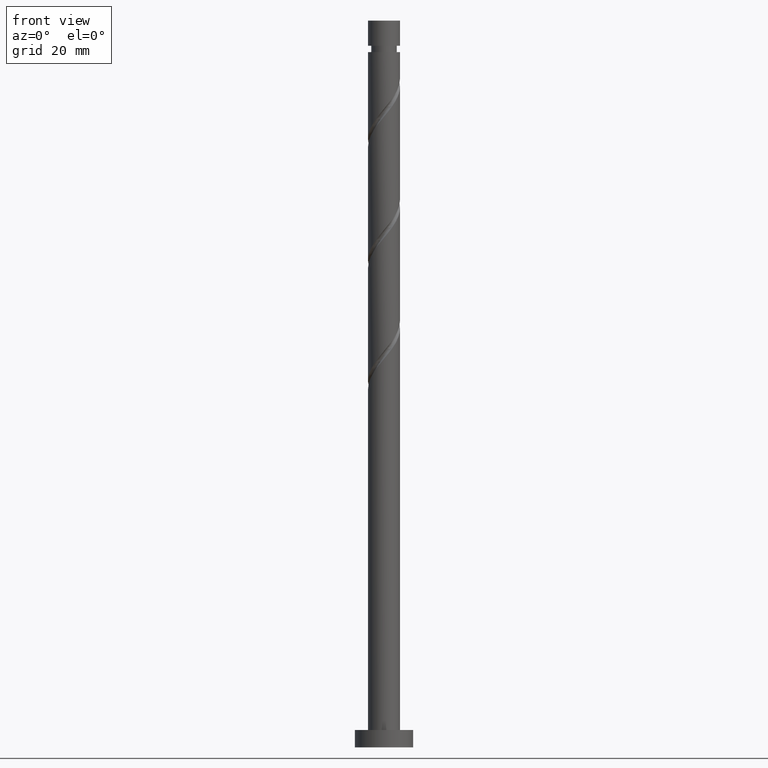
[diagram: clean part render]
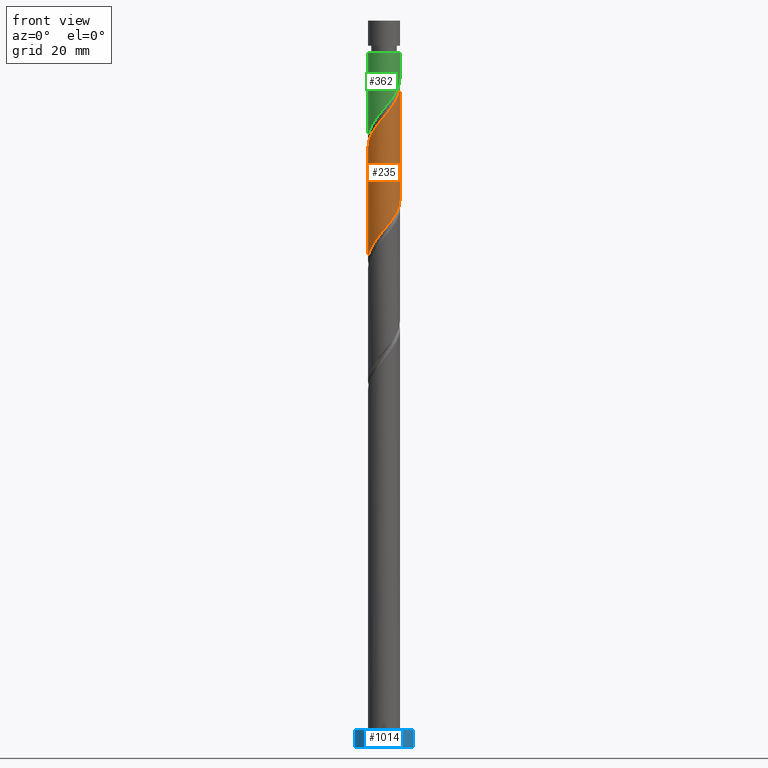
[diagram: same view with three faces highlighted in distinct colors, each labeled with its STEP entity id]
A machine part, front view with three faces highlighted in distinct colors.
Their STEP definitions:

[orange] entity #235 — the highlighted cylindrical surface (edge-blend (fillet) strip) has radius 2.75 mm, axis along (-0, -0, -1).
#34 = ORIENTED_EDGE ( 'NONE', *, *, #1006, .F. ) ;
#36 = CARTESIAN_POINT ( 'NONE',  ( 1.353259906971121307, -2.393989896424906672, 110.1930543868188153 ) ) ;
#95 = CARTESIAN_POINT ( 'NONE',  ( -0.9740891570832675983, -2.608325209404156908, 87.79722105348547245 ) ) ;
#98 = FACE_OUTER_BOUND ( 'NONE', #238, .T. ) ;
#136 = CARTESIAN_POINT ( 'NONE',  ( -2.695000000000003393, -0.5472430904086422743, 103.9430543868188010 ) ) ;
#168 = CARTESIAN_POINT ( 'NONE',  ( -2.608325209404161349, -0.9740891570832682644, 104.4638877201521439 ) ) ;
#193 = CARTESIAN_POINT ( 'NONE',  ( -2.750000000000000000, 0.000000000000000000, 125.0000000000000000 ) ) ;
#225 = ORIENTED_EDGE ( 'NONE', *, *, #1205, .F. ) ;
#235 = ADVANCED_FACE ( 'NONE', ( #98 ), #863, .T. ) ;
#238 = EDGE_LOOP ( 'NONE', ( #678, #225, #1573, #34 ) ) ;
#248 = CARTESIAN_POINT ( 'NONE',  ( -0.1203970237340173666, -2.781674790595842772, 88.83888772015215807 ) ) ;
#257 = CARTESIAN_POINT ( 'NONE',  ( -1.141352294733360084, -2.501962217801642741, 107.0680543868188295 ) ) ;
#258 = AXIS2_PLACEMENT_3D ( 'NONE', #586, #351, #1074 ) ;
#278 = CARTESIAN_POINT ( 'NONE',  ( -2.393989896424906227, -1.353259906971121307, 104.9847210534854725 ) ) ;
#347 = CARTESIAN_POINT ( 'NONE',  ( 2.750000000000000888, 2.968634351074752664E-15, 94.19119016162238722 ) ) ;
#351 = DIRECTION ( 'NONE',  ( -0.000000000000000000, -0.000000000000000000, -1.000000000000000000 ) ) ;
#355 = CARTESIAN_POINT ( 'NONE',  ( 1.141352294733357198, -2.501962217801639632, 90.40138772015214386 ) ) ;
#366 = CARTESIAN_POINT ( 'NONE',  ( 1.858639381879326535, -2.026810215123072467, 91.44305438681882947 ) ) ;
#386 = CARTESIAN_POINT ( 'NONE',  ( 2.750000000000004885, -0.1566777779776773460, 113.5054075228079853 ) ) ;
#408 = CARTESIAN_POINT ( 'NONE',  ( 2.026810215123074688, -1.858639381879330088, 111.2347210534854725 ) ) ;
#485 = CARTESIAN_POINT ( 'NONE',  ( -2.026810215123072467, -1.858639381879326535, 86.23472105348547245 ) ) ;
#509 = CARTESIAN_POINT ( 'NONE',  ( -2.750000000000003997, -0.2763853991962820222, 103.6125565207563710 ) ) ;
#514 = CARTESIAN_POINT ( 'NONE',  ( 2.750000000000003109, 1.859144745117509121E-15, 113.6949186120152149 ) ) ;
#583 = CARTESIAN_POINT ( 'NONE',  ( -1.732430656858973350, -2.179654583445647109, 86.75555438681884368 ) ) ;
#586 = CARTESIAN_POINT ( 'NONE',  ( 0.000000000000000000, 0.000000000000000000, 125.0000000000000000 ) ) ;
#613 = VECTOR ( 'NONE', #1197, 1000.000000000000000 ) ;
#638 = EDGE_CURVE ( 'NONE', #1438, #1265, #1529, .T. ) ;
#644 = CARTESIAN_POINT ( 'NONE',  ( -1.537624180313008848, -2.321189773387173805, 106.5472210534854582 ) ) ;
#678 = ORIENTED_EDGE ( 'NONE', *, *, #744, .F. ) ;
#705 = CARTESIAN_POINT ( 'NONE',  ( 2.750000000000000888, 2.968634351074752664E-15, 94.19119016162238722 ) ) ;
#744 = EDGE_CURVE ( 'NONE', #1105, #1089, #1190, .T. ) ;
#748 = CARTESIAN_POINT ( 'NONE',  ( -2.750000000000003109, 1.589268895019806216E-15, 103.2782519453485293 ) ) ;
#761 = CARTESIAN_POINT ( 'NONE',  ( -2.750000000000000888, -3.283489509522074659E-15, 83.77452349495574424 ) ) ;
#767 = CARTESIAN_POINT ( 'NONE',  ( -0.7450804091537110985, -2.682734662216110344, 107.5888877201521581 ) ) ;
#835 = CARTESIAN_POINT ( 'NONE',  ( 0.7450804091537088780, -2.682734662216107679, 89.88055438681881526 ) ) ;
#863 = CYLINDRICAL_SURFACE ( 'NONE', #258, 2.750000000000000000 ) ;
#865 = CARTESIAN_POINT ( 'NONE',  ( -1.858639381879330088, -2.026810215123074688, 106.0263877201521154 ) ) ;
#891 = CARTESIAN_POINT ( 'NONE',  ( 2.501962217801642741, -1.141352294733360084, 112.2763877201521581 ) ) ;
#947 = VECTOR ( 'NONE', #1182, 1000.000000000000000 ) ;
#978 = CARTESIAN_POINT ( 'NONE',  ( 2.750000000000003109, 1.859144745117509121E-15, 113.6949186120152149 ) ) ;
#984 = CARTESIAN_POINT ( 'NONE',  ( 1.537624180313005740, -2.321189773387172472, 90.92222105348550087 ) ) ;
#990 = CARTESIAN_POINT ( 'NONE',  ( 2.682734662216110788, -0.7450804091537112095, 112.7972210534854725 ) ) ;
#997 = CARTESIAN_POINT ( 'NONE',  ( 2.321189773387174693, -1.537624180313009070, 111.7555543868188010 ) ) ;
#1006 = EDGE_CURVE ( 'NONE', #1089, #1265, #1249, .T. ) ;
#1008 = CARTESIAN_POINT ( 'NONE',  ( -2.179654583445650218, -1.732430656858974904, 105.5055543868188010 ) ) ;
#1016 = CARTESIAN_POINT ( 'NONE',  ( 0.5472430904086422743, -2.695000000000003393, 109.1513877201521296 ) ) ;
#1022 = CARTESIAN_POINT ( 'NONE',  ( -2.750000000000003109, 1.589268895019806216E-15, 103.2782519453485293 ) ) ;
#1069 = CARTESIAN_POINT ( 'NONE',  ( -2.321189773387171584, -1.537624180313005740, 85.71388772015214386 ) ) ;
#1074 = DIRECTION ( 'NONE',  ( -1.000000000000000000, 0.000000000000000000, 0.000000000000000000 ) ) ;
#1089 = VERTEX_POINT ( 'NONE', #347 ) ;
#1104 = CARTESIAN_POINT ( 'NONE',  ( 2.393989896424902675, -1.353259906971120641, 92.48472105348548666 ) ) ;
#1105 = VERTEX_POINT ( 'NONE', #978 ) ;
#1113 = CARTESIAN_POINT ( 'NONE',  ( 1.732430656858974682, -2.179654583445650218, 110.7138877201521439 ) ) ;
#1132 = CARTESIAN_POINT ( 'NONE',  ( 0.9740891570832681534, -2.608325209404161793, 109.6722210534854867 ) ) ;
#1182 = DIRECTION ( 'NONE',  ( -0.000000000000000000, -0.000000000000000000, -1.000000000000000000 ) ) ;
#1189 = CARTESIAN_POINT ( 'NONE',  ( 0.3123416927098458529, -2.732204726405975226, 89.35972105348547245 ) ) ;
#1190 = LINE ( 'NONE', #1214, #613 ) ;
#1196 = CARTESIAN_POINT ( 'NONE',  ( -2.682734662216107679, -0.7450804091537093221, 84.67222105348550087 ) ) ;
#1197 = DIRECTION ( 'NONE',  ( -0.000000000000000000, -0.000000000000000000, -1.000000000000000000 ) ) ;
#1205 = EDGE_CURVE ( 'NONE', #1438, #1105, #1515, .T. ) ;
#1214 = CARTESIAN_POINT ( 'NONE',  ( 2.750000000000000000, 3.367778697655220519E-16, 125.0000000000000000 ) ) ;
#1219 = CARTESIAN_POINT ( 'NONE',  ( -2.501962217801639632, -1.141352294733357198, 85.19305438681881526 ) ) ;
#1226 = CARTESIAN_POINT ( 'NONE',  ( -0.3123416927098473517, -2.732204726405979223, 108.1097210534854867 ) ) ;
#1244 = CARTESIAN_POINT ( 'NONE',  ( 0.1203970237340162008, -2.781674790595845437, 108.6305543868188010 ) ) ;
#1249 =( BOUNDED_CURVE ( )  B_SPLINE_CURVE ( 2, ( #705, #1329, #1446, #1338, #1104, #1452, #366, #984, #355, #835, #1189, #248, #1462, #95, #1563, #583, #485, #1069, #1219, #1196, #1320, #1313, #1554 ),
 .UNSPECIFIED., .F., .T. ) 
 B_SPLINE_CURVE_WITH_KNOTS ( ( 3, 2, 2, 2, 2, 2, 2, 2, 2, 2, 2, 3 ),
 ( 0.5545322023138551382, 0.5625000000000000000, 0.5749999999999999556, 0.5875000000000000222, 0.5999999999999999778, 0.6125000000000000444, 0.6250000000000000000, 0.6374999999999999556, 0.6500000000000000222, 0.6624999999999999778, 0.6750000000000000444, 0.6795322023138551382 ),
 .UNSPECIFIED. ) 
 CURVE ( )  GEOMETRIC_REPRESENTATION_ITEM ( )  RATIONAL_B_SPLINE_CURVE ( ( 0.9039174447099340703, 0.9019565955404633684, 0.9090909090909118362, 0.8978984914501279002, 0.9090909090909118362, 0.8978984914501279002, 0.9090909090909118362, 0.8978984914501279002, 0.9090909090909118362, 0.8978984914501279002, 0.9090909090909118362, 0.8978984914501279002, 0.9090909090909118362, 0.8978984914501279002, 0.9090909090909118362, 0.8978984914501279002, 0.9090909090909118362, 0.8978984914501279002, 0.9090909090909118362, 0.8978984914501279002, 0.9090909090909118362, 0.9050328050005762570, 0.9039174447099340703 ) ) 
 REPRESENTATION_ITEM ( '' )  );
#1265 = VERTEX_POINT ( 'NONE', #761 ) ;
#1313 = CARTESIAN_POINT ( 'NONE',  ( -2.750000000000000444, -0.1566777779776913071, 83.96403458416301646 ) ) ;
#1320 = CARTESIAN_POINT ( 'NONE',  ( -2.732204726405975670, -0.3123416927098459084, 84.15138772015214386 ) ) ;
#1329 = CARTESIAN_POINT ( 'NONE',  ( 2.750000000000000888, -0.2763853991962827439, 93.85688558621455968 ) ) ;
#1338 = CARTESIAN_POINT ( 'NONE',  ( 2.608325209404156908, -0.9740891570832678203, 93.00555438681884368 ) ) ;
#1438 = VERTEX_POINT ( 'NONE', #1022 ) ;
#1446 = CARTESIAN_POINT ( 'NONE',  ( 2.694999999999999840, -0.5472430904086428294, 93.52638772015211543 ) ) ;
#1452 = CARTESIAN_POINT ( 'NONE',  ( 2.179654583445646665, -1.732430656858973350, 91.96388772015217228 ) ) ;
#1462 = CARTESIAN_POINT ( 'NONE',  ( -0.5472430904086426073, -2.694999999999999840, 88.31805438681880105 ) ) ;
#1472 = CARTESIAN_POINT ( 'NONE',  ( 2.732204726405979223, -0.3123416927098474072, 113.3180543868188295 ) ) ;
#1515 =( BOUNDED_CURVE ( )  B_SPLINE_CURVE ( 2, ( #748, #509, #136, #168, #278, #1008, #865, #644, #257, #767, #1226, #1244, #1016, #1132, #36, #1113, #408, #997, #891, #990, #1472, #386, #514 ),
 .UNSPECIFIED., .F., .T. ) 
 B_SPLINE_CURVE_WITH_KNOTS ( ( 3, 2, 2, 2, 2, 2, 2, 2, 2, 2, 2, 3 ),
 ( 0.5545322023138551382, 0.5625000000000000000, 0.5749999999999999556, 0.5875000000000000222, 0.5999999999999999778, 0.6125000000000000444, 0.6250000000000000000, 0.6374999999999999556, 0.6500000000000000222, 0.6624999999999999778, 0.6750000000000000444, 0.6795322023138555823 ),
 .UNSPECIFIED. ) 
 CURVE ( )  GEOMETRIC_REPRESENTATION_ITEM ( )  RATIONAL_B_SPLINE_CURVE ( ( 0.9039174447099400656, 0.9019565955404691415, 0.9090909090909177204, 0.8978984914501337844, 0.9090909090909177204, 0.8978984914501337844, 0.9090909090909177204, 0.8978984914501337844, 0.9090909090909177204, 0.8978984914501337844, 0.9090909090909177204, 0.8978984914501337844, 0.9090909090909177204, 0.8978984914501337844, 0.9090909090909177204, 0.8978984914501337844, 0.9090909090909177204, 0.8978984914501337844, 0.9090909090909177204, 0.8978984914501337844, 0.9090909090909177204, 0.9050328050005818081, 0.9039174447099397325 ) ) 
 REPRESENTATION_ITEM ( '' )  );
#1529 = LINE ( 'NONE', #193, #947 ) ;
#1554 = CARTESIAN_POINT ( 'NONE',  ( -2.750000000000000888, -3.283489509522074659E-15, 83.77452349495574424 ) ) ;
#1563 = CARTESIAN_POINT ( 'NONE',  ( -1.353259906971120419, -2.393989896424902675, 87.27638772015214386 ) ) ;
#1573 = ORIENTED_EDGE ( 'NONE', *, *, #638, .T. ) ;

[blue] entity #1014 — the highlighted cylindrical surface (edge-blend (fillet) strip) has radius 5 mm, axis along (-0, -0, -1).
#81 = CARTESIAN_POINT ( 'NONE',  ( 5.000000000000000000, 6.123233995736766282E-16, 3.000000000000000000 ) ) ;
#91 = DIRECTION ( 'NONE',  ( 1.000000000000000000, 0.000000000000000000, 0.000000000000000000 ) ) ;
#99 = EDGE_CURVE ( 'NONE', #986, #913, #1369, .T. ) ;
#116 = EDGE_CURVE ( 'NONE', #1381, #671, #1551, .T. ) ;
#123 = ORIENTED_EDGE ( 'NONE', *, *, #99, .T. ) ;
#226 = ORIENTED_EDGE ( 'NONE', *, *, #116, .F. ) ;
#308 = VECTOR ( 'NONE', #475, 1000.000000000000000 ) ;
#323 = DIRECTION ( 'NONE',  ( 1.000000000000000000, 0.000000000000000000, 0.000000000000000000 ) ) ;
#330 = DIRECTION ( 'NONE',  ( 0.000000000000000000, 0.000000000000000000, 1.000000000000000000 ) ) ;
#335 = FACE_OUTER_BOUND ( 'NONE', #588, .T. ) ;
#377 = LINE ( 'NONE', #1341, #1241 ) ;
#388 = EDGE_CURVE ( 'NONE', #1381, #986, #377, .T. ) ;
#470 = DIRECTION ( 'NONE',  ( -0.000000000000000000, -0.000000000000000000, -1.000000000000000000 ) ) ;
#475 = DIRECTION ( 'NONE',  ( -0.000000000000000000, -0.000000000000000000, -1.000000000000000000 ) ) ;
#547 = CARTESIAN_POINT ( 'NONE',  ( -5.000000000000000000, 0.000000000000000000, 0.000000000000000000 ) ) ;
#550 = ORIENTED_EDGE ( 'NONE', *, *, #388, .T. ) ;
#588 = EDGE_LOOP ( 'NONE', ( #1522, #226, #550, #123 ) ) ;
#606 = LINE ( 'NONE', #1194, #308 ) ;
#671 = VERTEX_POINT ( 'NONE', #81 ) ;
#816 = CARTESIAN_POINT ( 'NONE',  ( 0.000000000000000000, 0.000000000000000000, 3.000000000000000000 ) ) ;
#831 = DIRECTION ( 'NONE',  ( 0.000000000000000000, 0.000000000000000000, 1.000000000000000000 ) ) ;
#852 = DIRECTION ( 'NONE',  ( -1.000000000000000000, 0.000000000000000000, 0.000000000000000000 ) ) ;
#913 = VERTEX_POINT ( 'NONE', #1294 ) ;
#935 = CARTESIAN_POINT ( 'NONE',  ( -5.000000000000000000, 0.000000000000000000, 3.000000000000000000 ) ) ;
#986 = VERTEX_POINT ( 'NONE', #547 ) ;
#1014 = ADVANCED_FACE ( 'NONE', ( #335 ), #1088, .T. ) ;
#1070 = AXIS2_PLACEMENT_3D ( 'NONE', #816, #330, #91 ) ;
#1088 = CYLINDRICAL_SURFACE ( 'NONE', #1401, 5.000000000000000000 ) ;
#1143 = AXIS2_PLACEMENT_3D ( 'NONE', #1184, #831, #323 ) ;
#1184 = CARTESIAN_POINT ( 'NONE',  ( 0.000000000000000000, 0.000000000000000000, 0.000000000000000000 ) ) ;
#1194 = CARTESIAN_POINT ( 'NONE',  ( 5.000000000000000000, 6.123233995736766282E-16, 3.000000000000000000 ) ) ;
#1223 = DIRECTION ( 'NONE',  ( -0.000000000000000000, -0.000000000000000000, -1.000000000000000000 ) ) ;
#1241 = VECTOR ( 'NONE', #1223, 1000.000000000000000 ) ;
#1294 = CARTESIAN_POINT ( 'NONE',  ( 5.000000000000000000, 6.123233995736766282E-16, 0.000000000000000000 ) ) ;
#1341 = CARTESIAN_POINT ( 'NONE',  ( -5.000000000000000000, 0.000000000000000000, 3.000000000000000000 ) ) ;
#1369 = CIRCLE ( 'NONE', #1143, 5.000000000000000000 ) ;
#1381 = VERTEX_POINT ( 'NONE', #935 ) ;
#1401 = AXIS2_PLACEMENT_3D ( 'NONE', #1569, #470, #852 ) ;
#1522 = ORIENTED_EDGE ( 'NONE', *, *, #1555, .F. ) ;
#1551 = CIRCLE ( 'NONE', #1070, 5.000000000000000000 ) ;
#1555 = EDGE_CURVE ( 'NONE', #671, #913, #606, .T. ) ;
#1569 = CARTESIAN_POINT ( 'NONE',  ( 0.000000000000000000, 0.000000000000000000, 3.000000000000000000 ) ) ;

[green] entity #362 — the highlighted cylindrical surface (edge-blend (fillet) strip) has radius 2.75 mm, axis along (-0, -0, -1).
#20 = CARTESIAN_POINT ( 'NONE',  ( 0.3123416927098458529, -2.732204726405975226, 110.1930543868188010 ) ) ;
#31 = DIRECTION ( 'NONE',  ( -0.000000000000000000, -0.000000000000000000, -1.000000000000000000 ) ) ;
#43 = CARTESIAN_POINT ( 'NONE',  ( -1.732430656858973350, -2.179654583445647109, 107.5888877201521723 ) ) ;
#106 = DIRECTION ( 'NONE',  ( -1.000000000000000000, 0.000000000000000000, 0.000000000000000000 ) ) ;
#113 = ORIENTED_EDGE ( 'NONE', *, *, #1110, .F. ) ;
#118 = DIRECTION ( 'NONE',  ( -1.000000000000000000, 0.000000000000000000, 0.000000000000000000 ) ) ;
#148 = VERTEX_POINT ( 'NONE', #708 ) ;
#161 = CARTESIAN_POINT ( 'NONE',  ( 2.179654583445646665, -1.732430656858973350, 112.7972210534854867 ) ) ;
#232 = CARTESIAN_POINT ( 'NONE',  ( 2.694999999999999840, -0.5472430904086428294, 114.3597210534854867 ) ) ;
#236 = DIRECTION ( 'NONE',  ( -0.000000000000000000, -0.000000000000000000, -1.000000000000000000 ) ) ;
#348 = ORIENTED_EDGE ( 'NONE', *, *, #718, .T. ) ;
#358 = CARTESIAN_POINT ( 'NONE',  ( 0.000000000000000000, 0.000000000000000000, 125.0000000000000000 ) ) ;
#362 = ADVANCED_FACE ( 'NONE', ( #480 ), #1449, .T. ) ;
#364 = VECTOR ( 'NONE', #31, 1000.000000000000000 ) ;
#380 = CARTESIAN_POINT ( 'NONE',  ( -2.750000000000000888, -0.1566777779776882262, 104.7973679174963451 ) ) ;
#393 = EDGE_CURVE ( 'NONE', #1453, #554, #1499, .T. ) ;
#401 = CARTESIAN_POINT ( 'NONE',  ( -2.682734662216107679, -0.7450804091537093221, 105.5055543868188153 ) ) ;
#428 = ORIENTED_EDGE ( 'NONE', *, *, #657, .T. ) ;
#429 = CARTESIAN_POINT ( 'NONE',  ( -2.750000000000000000, 0.000000000000000000, 125.0000000000000000 ) ) ;
#434 = CARTESIAN_POINT ( 'NONE',  ( 2.749999999999998224, 3.367778697655219532E-16, 119.5680543868188010 ) ) ;
#480 = FACE_OUTER_BOUND ( 'NONE', #904, .T. ) ;
#522 = CARTESIAN_POINT ( 'NONE',  ( -0.5472430904086426073, -2.694999999999999840, 109.1513877201521723 ) ) ;
#530 = CARTESIAN_POINT ( 'NONE',  ( 1.537624180313005740, -2.321189773387172472, 111.7555543868188437 ) ) ;
#554 = VERTEX_POINT ( 'NONE', #1261 ) ;
#593 = CARTESIAN_POINT ( 'NONE',  ( 2.750000000000000444, 5.397517001954094587E-16, 115.0245234949557300 ) ) ;
#597 =( BOUNDED_CURVE ( )  B_SPLINE_CURVE ( 2, ( #593, #1078, #232, #723, #1204, #161, #872, #530, #1480, #621, #20, #626, #522, #1373, #652, #43, #776, #1488, #1251, #401, #1118, #380, #884 ),
 .UNSPECIFIED., .F., .T. ) 
 B_SPLINE_CURVE_WITH_KNOTS ( ( 3, 2, 2, 2, 2, 2, 2, 2, 2, 2, 2, 3 ),
 ( 0.3045322023138550827, 0.3125000000000000000, 0.3250000000000000111, 0.3375000000000000222, 0.3499999999999999778, 0.3624999999999999889, 0.3750000000000000000, 0.3875000000000000111, 0.4000000000000000222, 0.4124999999999999778, 0.4249999999999999889, 0.4295322023138551937 ),
 .UNSPECIFIED. ) 
 CURVE ( )  GEOMETRIC_REPRESENTATION_ITEM ( )  RATIONAL_B_SPLINE_CURVE ( ( 0.9039174447099341814, 0.9019565955404633684, 0.9090909090909118362, 0.8978984914501279002, 0.9090909090909118362, 0.8978984914501279002, 0.9090909090909118362, 0.8978984914501279002, 0.9090909090909118362, 0.8978984914501279002, 0.9090909090909118362, 0.8978984914501279002, 0.9090909090909118362, 0.8978984914501279002, 0.9090909090909118362, 0.8978984914501279002, 0.9090909090909118362, 0.8978984914501279002, 0.9090909090909118362, 0.8978984914501279002, 0.9090909090909118362, 0.9050328050005762570, 0.9039174447099340703 ) ) 
 REPRESENTATION_ITEM ( '' )  );
#621 = CARTESIAN_POINT ( 'NONE',  ( 0.7450804091537088780, -2.682734662216107679, 110.7138877201521439 ) ) ;
#626 = CARTESIAN_POINT ( 'NONE',  ( -0.1203970237340173666, -2.781674790595842772, 109.6722210534855151 ) ) ;
#652 = CARTESIAN_POINT ( 'NONE',  ( -1.353259906971120419, -2.393989896424902675, 108.1097210534854867 ) ) ;
#657 = EDGE_CURVE ( 'NONE', #1408, #148, #1173, .T. ) ;
#708 = CARTESIAN_POINT ( 'NONE',  ( -2.750000000000000444, -8.546068586427316511E-16, 104.6078568282890728 ) ) ;
#718 = EDGE_CURVE ( 'NONE', #1453, #1408, #1456, .T. ) ;
#723 = CARTESIAN_POINT ( 'NONE',  ( 2.608325209404156908, -0.9740891570832678203, 113.8388877201521723 ) ) ;
#735 = DIRECTION ( 'NONE',  ( -0.000000000000000000, -0.000000000000000000, -1.000000000000000000 ) ) ;
#776 = CARTESIAN_POINT ( 'NONE',  ( -2.026810215123072467, -1.858639381879326535, 107.0680543868188153 ) ) ;
#872 = CARTESIAN_POINT ( 'NONE',  ( 1.858639381879326535, -2.026810215123072467, 112.2763877201521439 ) ) ;
#884 = CARTESIAN_POINT ( 'NONE',  ( -2.750000000000000444, -8.546068586427316511E-16, 104.6078568282890728 ) ) ;
#904 = EDGE_LOOP ( 'NONE', ( #1398, #348, #428, #113 ) ) ;
#911 = DIRECTION ( 'NONE',  ( -0.000000000000000000, -0.000000000000000000, -1.000000000000000000 ) ) ;
#916 = CARTESIAN_POINT ( 'NONE',  ( -2.749999999999998224, 0.000000000000000000, 119.5680543868188010 ) ) ;
#954 = CARTESIAN_POINT ( 'NONE',  ( 0.000000000000000000, 0.000000000000000000, 119.5680543868188010 ) ) ;
#1018 = CARTESIAN_POINT ( 'NONE',  ( 2.750000000000000000, 3.367778697655220519E-16, 125.0000000000000000 ) ) ;
#1078 = CARTESIAN_POINT ( 'NONE',  ( 2.750000000000000888, -0.2763853991962820777, 114.6902189195478741 ) ) ;
#1102 = AXIS2_PLACEMENT_3D ( 'NONE', #358, #236, #118 ) ;
#1110 = EDGE_CURVE ( 'NONE', #554, #148, #597, .T. ) ;
#1118 = CARTESIAN_POINT ( 'NONE',  ( -2.732204726405975670, -0.3123416927098459084, 104.9847210534854725 ) ) ;
#1124 = VECTOR ( 'NONE', #911, 1000.000000000000000 ) ;
#1173 = LINE ( 'NONE', #429, #1124 ) ;
#1204 = CARTESIAN_POINT ( 'NONE',  ( 2.393989896424902675, -1.353259906971120641, 113.3180543868188010 ) ) ;
#1251 = CARTESIAN_POINT ( 'NONE',  ( -2.501962217801639632, -1.141352294733357198, 106.0263877201521439 ) ) ;
#1261 = CARTESIAN_POINT ( 'NONE',  ( 2.750000000000000444, 5.397517001954094587E-16, 115.0245234949557300 ) ) ;
#1373 = CARTESIAN_POINT ( 'NONE',  ( -0.9740891570832675983, -2.608325209404156908, 108.6305543868188010 ) ) ;
#1398 = ORIENTED_EDGE ( 'NONE', *, *, #393, .F. ) ;
#1408 = VERTEX_POINT ( 'NONE', #916 ) ;
#1449 = CYLINDRICAL_SURFACE ( 'NONE', #1102, 2.750000000000000000 ) ;
#1453 = VERTEX_POINT ( 'NONE', #434 ) ;
#1456 = CIRCLE ( 'NONE', #1552, 2.749999999999998224 ) ;
#1480 = CARTESIAN_POINT ( 'NONE',  ( 1.141352294733357198, -2.501962217801639632, 111.2347210534854725 ) ) ;
#1488 = CARTESIAN_POINT ( 'NONE',  ( -2.321189773387171584, -1.537624180313005740, 106.5472210534855009 ) ) ;
#1499 = LINE ( 'NONE', #1018, #364 ) ;
#1552 = AXIS2_PLACEMENT_3D ( 'NONE', #954, #735, #106 ) ;